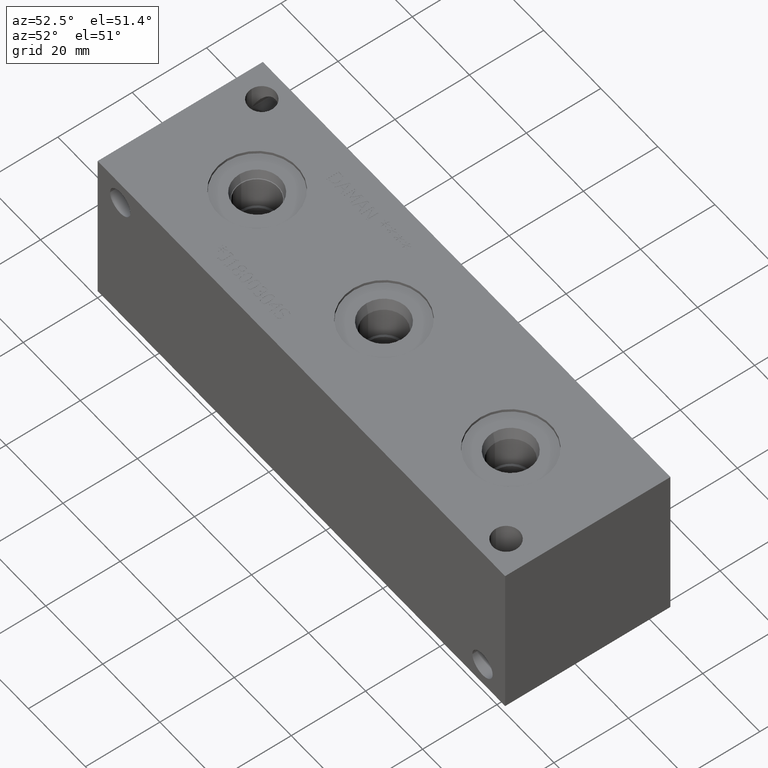
[diagram: clean part render]
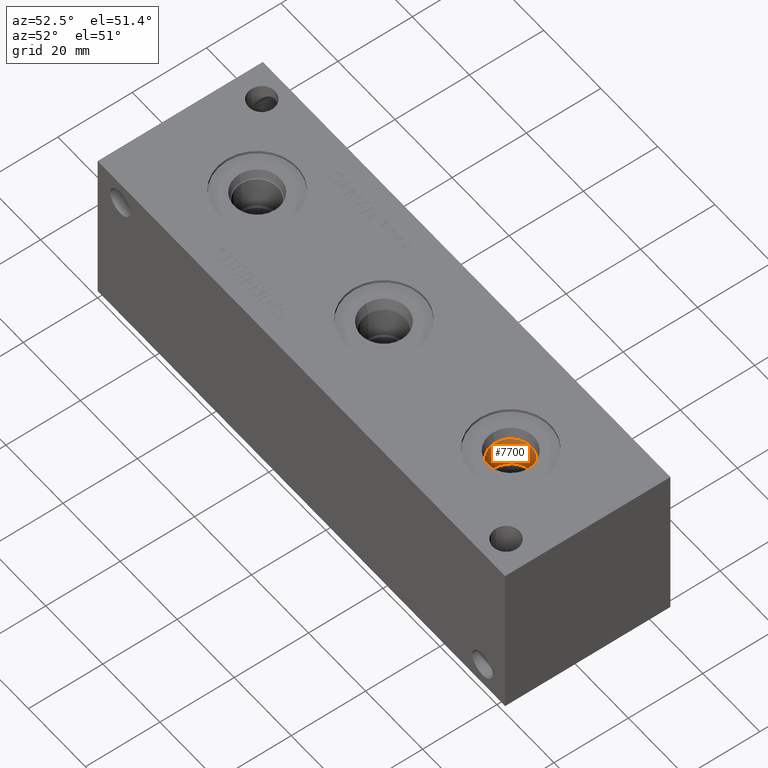
[diagram: same view with one face highlighted and labeled with its STEP entity id]
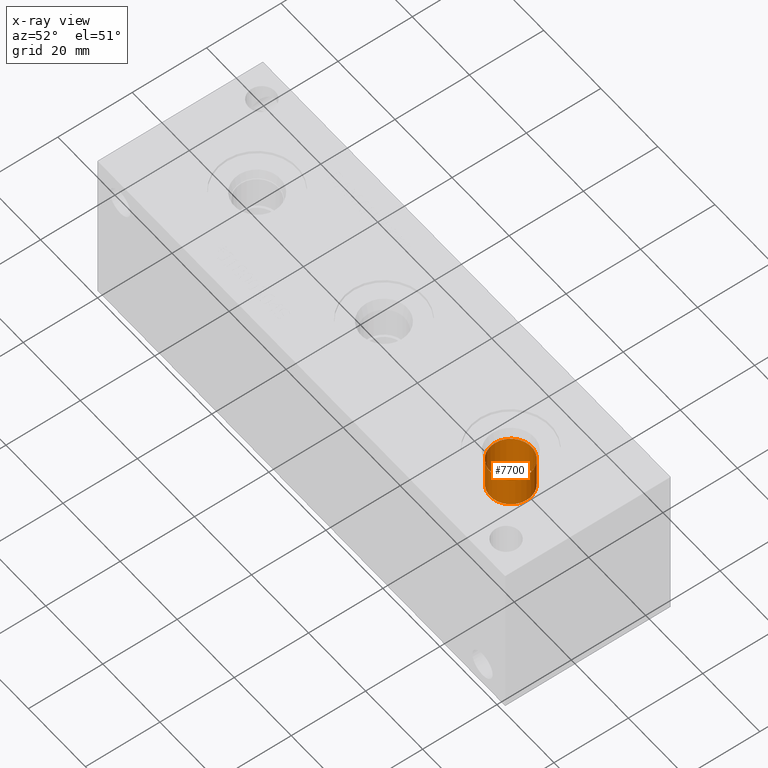
[diagram: x-ray of the same camera — body ghosted, the highlighted face saturated]
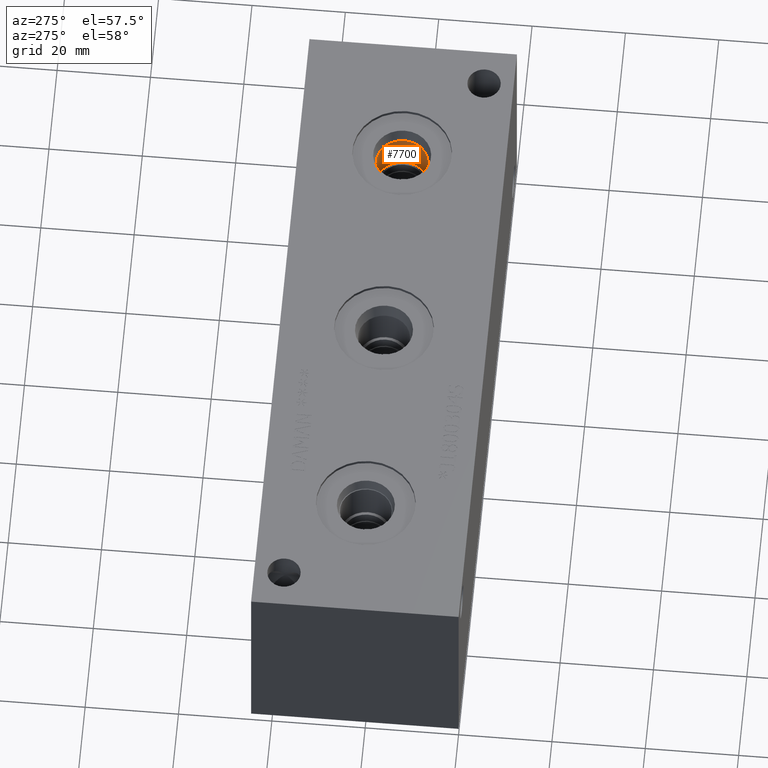
[diagram: same view with one face highlighted and labeled with its STEP entity id]
A machine part, auxiliary view. The second image highlights one B-rep face of the part: STEP entity #7700.
The next image is the same camera in x-ray: the body ghosted, the highlighted face saturated — about 0% of this face is hidden behind the body in this view.
A second angle (auxiliary view) of the same face is appended — the face is thin or edge-on in the first view.
In plain terms, the highlighted cylindrical surface (bore or boss wall) has radius 5.5626 mm, axis along (0, 0, 1).
Its self-contained STEP definition (entity closure, byte-faithful):
#41=CYLINDRICAL_SURFACE('',#8090,5.5626);
#163=CIRCLE('',#8087,5.5626);
#164=CIRCLE('',#8088,5.5626);
#166=CIRCLE('',#8091,5.5626);
#847=FACE_OUTER_BOUND('',#1285,.T.);
#1285=EDGE_LOOP('',(#6739,#6740,#6741,#6742,#6743));
#2035=LINE('',#13117,#2770);
#2770=VECTOR('',#9555,5.5626);
#3676=VERTEX_POINT('',#13108);
#3677=VERTEX_POINT('',#13109);
#3679=VERTEX_POINT('',#13115);
#4710=EDGE_CURVE('',#3676,#3677,#163,.T.);
#4711=EDGE_CURVE('',#3677,#3676,#164,.T.);
#4713=EDGE_CURVE('',#3679,#3679,#166,.T.);
#4714=EDGE_CURVE('',#3679,#3677,#2035,.T.);
#6739=ORIENTED_EDGE('',*,*,#4713,.F.);
#6740=ORIENTED_EDGE('',*,*,#4714,.T.);
#6741=ORIENTED_EDGE('',*,*,#4710,.F.);
#6742=ORIENTED_EDGE('',*,*,#4711,.F.);
#6743=ORIENTED_EDGE('',*,*,#4714,.F.);
#7700=ADVANCED_FACE('',(#847),#41,.F.);
#8087=AXIS2_PLACEMENT_3D('',#13110,#9545,#9546);
#8088=AXIS2_PLACEMENT_3D('',#13111,#9547,#9548);
#8090=AXIS2_PLACEMENT_3D('',#13114,#9551,#9552);
#8091=AXIS2_PLACEMENT_3D('',#13116,#9553,#9554);
#9545=DIRECTION('center_axis',(0.,0.,1.));
#9546=DIRECTION('ref_axis',(1.,0.,0.));
#9547=DIRECTION('center_axis',(0.,0.,1.));
#9548=DIRECTION('ref_axis',(1.,0.,0.));
#9551=DIRECTION('center_axis',(0.,0.,1.));
#9552=DIRECTION('ref_axis',(1.,0.,0.));
#9553=DIRECTION('center_axis',(0.,0.,-1.));
#9554=DIRECTION('ref_axis',(1.,0.,0.));
#9555=DIRECTION('',(0.,0.,-1.));
#13108=CARTESIAN_POINT('',(121.4374,22.225,32.1564));
#13109=CARTESIAN_POINT('',(110.3122,22.225,32.1564));
#13110=CARTESIAN_POINT('Origin',(115.8748,22.225,32.1564));
#13111=CARTESIAN_POINT('Origin',(115.8748,22.225,32.1564));
#13114=CARTESIAN_POINT('Origin',(115.8748,22.225,38.3032));
#13115=CARTESIAN_POINT('',(110.3122,22.225,40.6733798804812));
#13116=CARTESIAN_POINT('Origin',(115.8748,22.225,40.6733798804812));
#13117=CARTESIAN_POINT('',(110.3122,22.225,38.3032));